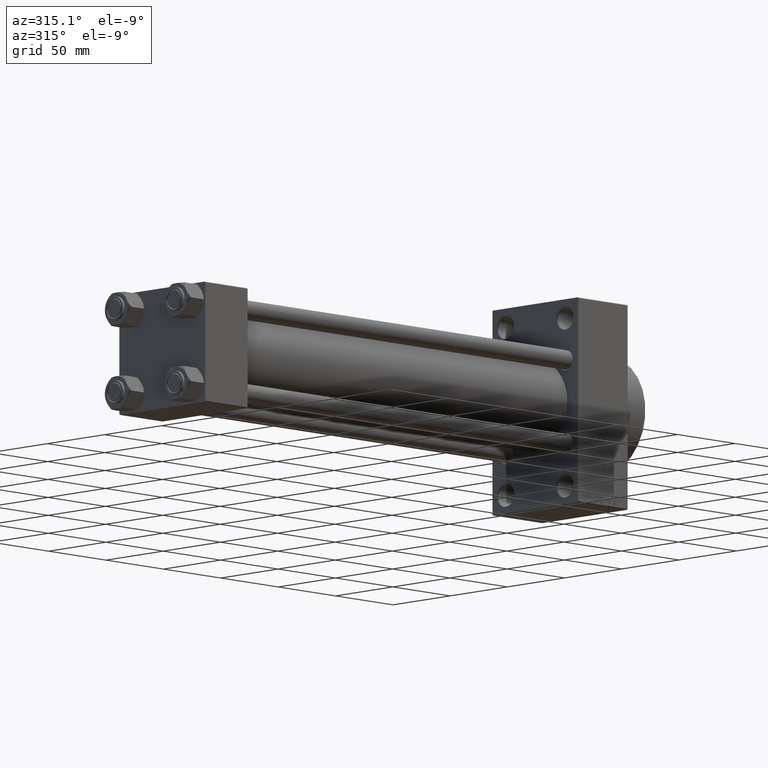
[diagram: clean part render]
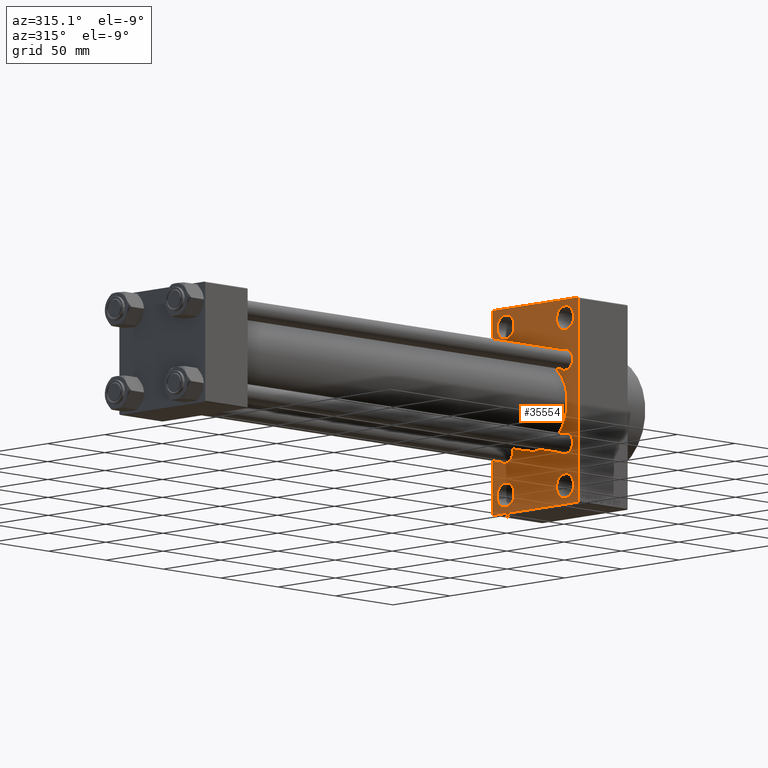
[diagram: same view with one face highlighted and labeled with its STEP entity id]
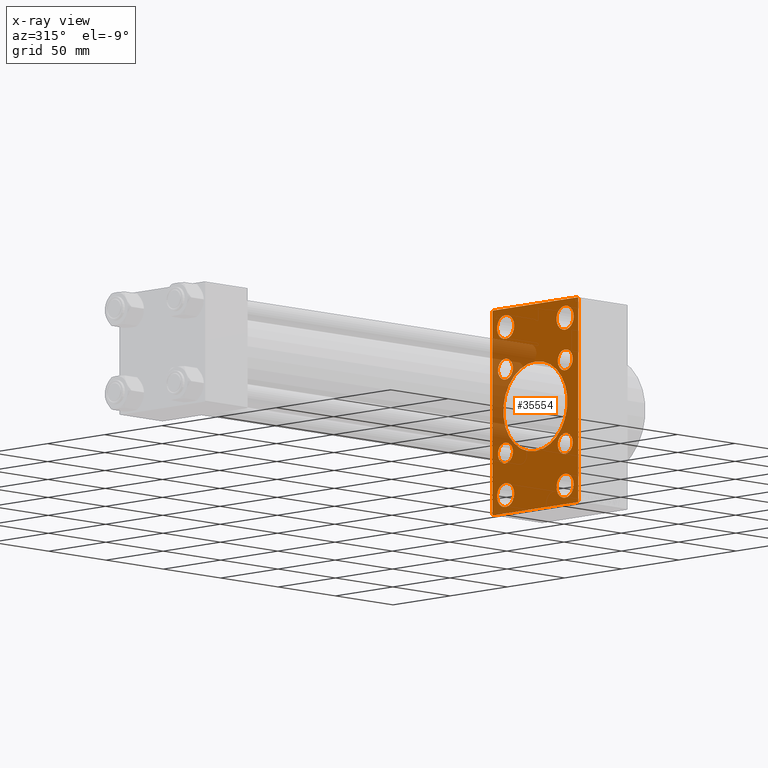
[diagram: x-ray of the same camera — body ghosted, the highlighted face saturated]
A machine part, auxiliary view. The second image highlights one B-rep face of the part: STEP entity #35554.
The next image is the same camera in x-ray: the body ghosted, the highlighted face saturated — about 18% of this face is hidden behind the body in this view.
In plain terms, the highlighted planar face has unit normal (-1, 0, 0).
Its self-contained STEP definition (entity closure, byte-faithful):
#137 = ORIENTED_EDGE ( 'NONE', *, *, #18716, .F. ) ;
#564 = ORIENTED_EDGE ( 'NONE', *, *, #25050, .T. ) ;
#808 = ORIENTED_EDGE ( 'NONE', *, *, #11490, .T. ) ;
#978 = VECTOR ( 'NONE', #2687, 1000.000000000000000 ) ;
#1043 = CARTESIAN_POINT ( 'NONE',  ( 324.9999999999999432, -25.99999999999999645, 52.50000000000000000 ) ) ;
#1358 = CIRCLE ( 'NONE', #29330, 6.500000000000008882 ) ;
#1393 = EDGE_CURVE ( 'NONE', #2626, #20647, #3151, .T. ) ;
#1401 = EDGE_CURVE ( 'NONE', #28456, #1434, #3121, .T. ) ;
#1416 = ORIENTED_EDGE ( 'NONE', *, *, #45336, .T. ) ;
#1434 = VERTEX_POINT ( 'NONE', #11450 ) ;
#1500 = ORIENTED_EDGE ( 'NONE', *, *, #1393, .T. ) ;
#1753 = CARTESIAN_POINT ( 'NONE',  ( 324.9999999999999432, -25.99999999999999645, -60.00000000000010658 ) ) ;
#2130 = CIRCLE ( 'NONE', #14902, 7.500000000000117240 ) ;
#2287 = EDGE_CURVE ( 'NONE', #35576, #29620, #16761, .T. ) ;
#2409 = CIRCLE ( 'NONE', #6407, 7.500000000000117240 ) ;
#2512 = VERTEX_POINT ( 'NONE', #13875 ) ;
#2545 = VECTOR ( 'NONE', #31335, 1000.000000000000114 ) ;
#2626 = VERTEX_POINT ( 'NONE', #14858 ) ;
#2687 = DIRECTION ( 'NONE',  ( 0.000000000000000000, -5.421010862427522170E-17, -1.000000000000000000 ) ) ;
#2862 = CARTESIAN_POINT ( 'NONE',  ( 324.9999999999999432, 37.50000000000000000, 63.49999999999998579 ) ) ;
#2905 = EDGE_CURVE ( 'NONE', #14826, #25409, #2409, .T. ) ;
#2936 = FACE_BOUND ( 'NONE', #39550, .T. ) ;
#2976 = CIRCLE ( 'NONE', #48550, 6.500000000000008882 ) ;
#3121 = CIRCLE ( 'NONE', #43921, 7.500000000000117240 ) ;
#3151 = CIRCLE ( 'NONE', #31157, 7.500000000000117240 ) ;
#3551 = DIRECTION ( 'NONE',  ( 0.000000000000000000, 0.000000000000000000, 1.000000000000000000 ) ) ;
#3557 = VERTEX_POINT ( 'NONE', #43160 ) ;
#3564 = DIRECTION ( 'NONE',  ( 0.000000000000000000, 0.000000000000000000, 1.000000000000000000 ) ) ;
#3660 = AXIS2_PLACEMENT_3D ( 'NONE', #13450, #28743, #16719 ) ;
#3699 = DIRECTION ( 'NONE',  ( 0.000000000000000000, 0.000000000000000000, 1.000000000000000000 ) ) ;
#3795 = DIRECTION ( 'NONE',  ( 0.000000000000000000, 0.000000000000000000, 1.000000000000000000 ) ) ;
#3937 = DIRECTION ( 'NONE',  ( 1.000000000000000000, -0.000000000000000000, 0.000000000000000000 ) ) ;
#4117 = CARTESIAN_POINT ( 'NONE',  ( 324.9999999999999432, 26.00000000000000000, 52.49999999999999289 ) ) ;
#4269 = DIRECTION ( 'NONE',  ( 0.000000000000000000, 0.000000000000000000, 1.000000000000000000 ) ) ;
#4273 = CARTESIAN_POINT ( 'NONE',  ( 324.9999999999999432, -25.99999999999999645, 44.99999999999987921 ) ) ;
#4310 = CARTESIAN_POINT ( 'NONE',  ( 324.9999999999999432, -37.49999999999999289, 63.49999999999991473 ) ) ;
#4725 = ORIENTED_EDGE ( 'NONE', *, *, #16850, .T. ) ;
#4730 = DIRECTION ( 'NONE',  ( 1.000000000000000000, -0.000000000000000000, 0.000000000000000000 ) ) ;
#5828 = VECTOR ( 'NONE', #21852, 1000.000000000000000 ) ;
#6407 = AXIS2_PLACEMENT_3D ( 'NONE', #1043, #22811, #3795 ) ;
#6470 = CIRCLE ( 'NONE', #20862, 6.500000000000008882 ) ;
#7082 = CARTESIAN_POINT ( 'NONE',  ( 324.9999999999999432, 37.50000000000000000, 63.99999999999998579 ) ) ;
#7425 = ORIENTED_EDGE ( 'NONE', *, *, #47923, .T. ) ;
#7581 = VERTEX_POINT ( 'NONE', #39198 ) ;
#7724 = DIRECTION ( 'NONE',  ( -0.000000000000000000, -0.7071067811865965336, -0.7071067811864985009 ) ) ;
#7786 = CARTESIAN_POINT ( 'NONE',  ( 324.9999999999999432, -50.49999999999740652, -50.50000000000441958 ) ) ;
#7936 = ORIENTED_EDGE ( 'NONE', *, *, #24443, .T. ) ;
#8031 = DIRECTION ( 'NONE',  ( 1.000000000000000000, 0.000000000000000000, 0.000000000000000000 ) ) ;
#8041 = CIRCLE ( 'NONE', #36057, 28.00000000000000000 ) ;
#8074 = CIRCLE ( 'NONE', #38475, 6.500000000000008882 ) ;
#8085 = CARTESIAN_POINT ( 'NONE',  ( 324.9999999999999432, 26.00000000000000000, -52.49999999999999289 ) ) ;
#8123 = DIRECTION ( 'NONE',  ( 0.000000000000000000, 0.000000000000000000, 1.000000000000000000 ) ) ;
#8312 = VERTEX_POINT ( 'NONE', #44611 ) ;
#8371 = DIRECTION ( 'NONE',  ( 1.000000000000000000, -0.000000000000000000, 0.000000000000000000 ) ) ;
#8865 = DIRECTION ( 'NONE',  ( 0.000000000000000000, 0.000000000000000000, -1.000000000000000000 ) ) ;
#9039 = VERTEX_POINT ( 'NONE', #18859 ) ;
#9045 = VECTOR ( 'NONE', #24071, 1000.000000000000000 ) ;
#9222 = CARTESIAN_POINT ( 'NONE',  ( 324.9999999999999432, -26.14999999999999147, -26.15000000000000924 ) ) ;
#9418 = VERTEX_POINT ( 'NONE', #39576 ) ;
#9734 = EDGE_CURVE ( 'NONE', #10638, #28502, #32494, .T. ) ;
#9950 = LINE ( 'NONE', #36515, #978 ) ;
#9976 = AXIS2_PLACEMENT_3D ( 'NONE', #15794, #31094, #3564 ) ;
#10231 = EDGE_CURVE ( 'NONE', #3557, #22715, #28932, .T. ) ;
#10242 = VERTEX_POINT ( 'NONE', #38842 ) ;
#10252 = DIRECTION ( 'NONE',  ( 0.000000000000000000, 0.000000000000000000, 1.000000000000000000 ) ) ;
#10285 = EDGE_CURVE ( 'NONE', #8312, #43495, #16029, .T. ) ;
#10436 = FACE_BOUND ( 'NONE', #35569, .T. ) ;
#10638 = VERTEX_POINT ( 'NONE', #35777 ) ;
#10807 = CARTESIAN_POINT ( 'NONE',  ( 324.9999999999999432, 26.14999999999999858, -26.15000000000000213 ) ) ;
#10886 = ORIENTED_EDGE ( 'NONE', *, *, #39221, .T. ) ;
#11423 = DIRECTION ( 'NONE',  ( -0.000000000000000000, 0.000000000000000000, 1.000000000000000000 ) ) ;
#11450 = CARTESIAN_POINT ( 'NONE',  ( 324.9999999999999432, 26.00000000000000000, 60.00000000000010658 ) ) ;
#11490 = EDGE_CURVE ( 'NONE', #28502, #19544, #9950, .T. ) ;
#11641 = CARTESIAN_POINT ( 'NONE',  ( 324.9999999999999432, 37.49999999999999289, -63.50000000000001421 ) ) ;
#11702 = CARTESIAN_POINT ( 'NONE',  ( 324.9999999999999432, -25.99999999999999645, 52.50000000000000000 ) ) ;
#11992 = AXIS2_PLACEMENT_3D ( 'NONE', #31820, #36745, #20268 ) ;
#12112 = VECTOR ( 'NONE', #13433, 1000.000000000000000 ) ;
#12180 = ORIENTED_EDGE ( 'NONE', *, *, #25796, .T. ) ;
#12309 = VERTEX_POINT ( 'NONE', #18073 ) ;
#12686 = CARTESIAN_POINT ( 'NONE',  ( 324.9999999999999432, -26.14999999999999147, -32.65000000000001990 ) ) ;
#13433 = DIRECTION ( 'NONE',  ( 0.000000000000000000, 0.7071067811865867636, -0.7071067811865081598 ) ) ;
#13450 = CARTESIAN_POINT ( 'NONE',  ( 324.9999999999999432, -26.14999999999999147, -26.15000000000000924 ) ) ;
#13875 = CARTESIAN_POINT ( 'NONE',  ( 324.9999999999999432, -25.99999999999999645, -44.99999999999987210 ) ) ;
#14331 = CARTESIAN_POINT ( 'NONE',  ( 324.9999999999999432, -50.49999999999969447, 50.50000000000039080 ) ) ;
#14619 = DIRECTION ( 'NONE',  ( 0.000000000000000000, 0.000000000000000000, 1.000000000000000000 ) ) ;
#14826 = VERTEX_POINT ( 'NONE', #4273 ) ;
#14858 = CARTESIAN_POINT ( 'NONE',  ( 324.9999999999999432, 26.00000000000000000, -60.00000000000010658 ) ) ;
#14902 = AXIS2_PLACEMENT_3D ( 'NONE', #8085, #18863, #49414 ) ;
#14935 = AXIS2_PLACEMENT_3D ( 'NONE', #33540, #44571, #10252 ) ;
#14956 = DIRECTION ( 'NONE',  ( 1.000000000000000000, -0.000000000000000000, 0.000000000000000000 ) ) ;
#15277 = DIRECTION ( 'NONE',  ( 1.000000000000000000, -0.000000000000000000, 0.000000000000000000 ) ) ;
#15560 = ORIENTED_EDGE ( 'NONE', *, *, #9734, .T. ) ;
#15794 = CARTESIAN_POINT ( 'NONE',  ( 324.9999999999999432, -26.14999999999999147, 26.15000000000000924 ) ) ;
#15875 = LINE ( 'NONE', #31924, #34823 ) ;
#16029 = LINE ( 'NONE', #7786, #2545 ) ;
#16498 = ORIENTED_EDGE ( 'NONE', *, *, #2905, .T. ) ;
#16516 = AXIS2_PLACEMENT_3D ( 'NONE', #11702, #25826, #31008 ) ;
#16559 = CIRCLE ( 'NONE', #3660, 6.500000000000008882 ) ;
#16719 = DIRECTION ( 'NONE',  ( 0.000000000000000000, 0.000000000000000000, 1.000000000000000000 ) ) ;
#16761 = CIRCLE ( 'NONE', #34377, 28.00000000000000000 ) ;
#16850 = EDGE_CURVE ( 'NONE', #7581, #12309, #32365, .T. ) ;
#17419 = VERTEX_POINT ( 'NONE', #17710 ) ;
#17710 = CARTESIAN_POINT ( 'NONE',  ( 324.9999999999999432, -36.99999999999992895, 63.99999999999997158 ) ) ;
#17946 = DIRECTION ( 'NONE',  ( -1.000000000000000000, 0.000000000000000000, -0.000000000000000000 ) ) ;
#18073 = CARTESIAN_POINT ( 'NONE',  ( 324.9999999999999432, -26.14999999999999147, 32.65000000000001990 ) ) ;
#18224 = AXIS2_PLACEMENT_3D ( 'NONE', #26807, #15277, #4269 ) ;
#18436 = FACE_BOUND ( 'NONE', #21909, .T. ) ;
#18716 = EDGE_CURVE ( 'NONE', #45199, #43495, #15875, .T. ) ;
#18859 = CARTESIAN_POINT ( 'NONE',  ( 324.9999999999999432, 26.14999999999999858, 32.65000000000001990 ) ) ;
#18863 = DIRECTION ( 'NONE',  ( 1.000000000000000000, -0.000000000000000000, 0.000000000000000000 ) ) ;
#19026 = EDGE_CURVE ( 'NONE', #10638, #17419, #33892, .T. ) ;
#19544 = VERTEX_POINT ( 'NONE', #11641 ) ;
#19906 = ORIENTED_EDGE ( 'NONE', *, *, #2287, .T. ) ;
#20268 = DIRECTION ( 'NONE',  ( 0.000000000000000000, 0.000000000000000000, 1.000000000000000000 ) ) ;
#20647 = VERTEX_POINT ( 'NONE', #46466 ) ;
#20862 = AXIS2_PLACEMENT_3D ( 'NONE', #9222, #4730, #31034 ) ;
#21338 = CIRCLE ( 'NONE', #14935, 7.500000000000117240 ) ;
#21852 = DIRECTION ( 'NONE',  ( -0.000000000000000000, 0.7071067811865524577, 0.7071067811865426878 ) ) ;
#21909 = EDGE_LOOP ( 'NONE', ( #34077, #41339 ) ) ;
#22194 = CARTESIAN_POINT ( 'NONE',  ( 324.9999999999999432, -2.602085213965210642E-15, 28.00000000000000000 ) ) ;
#22596 = LINE ( 'NONE', #14331, #5828 ) ;
#22715 = VERTEX_POINT ( 'NONE', #38325 ) ;
#22811 = DIRECTION ( 'NONE',  ( 1.000000000000000000, -0.000000000000000000, 0.000000000000000000 ) ) ;
#22819 = CARTESIAN_POINT ( 'NONE',  ( 324.9999999999999432, -25.99999999999999645, 60.00000000000011369 ) ) ;
#22829 = VECTOR ( 'NONE', #29627, 1000.000000000000000 ) ;
#22943 = ORIENTED_EDGE ( 'NONE', *, *, #36236, .T. ) ;
#23490 = CARTESIAN_POINT ( 'NONE',  ( 324.9999999999999432, -2.602085213965210642E-15, 0.000000000000000000 ) ) ;
#24071 = DIRECTION ( 'NONE',  ( 0.000000000000000000, -1.000000000000000000, -1.850371707708594563E-16 ) ) ;
#24443 = EDGE_CURVE ( 'NONE', #20647, #2626, #2130, .T. ) ;
#25050 = EDGE_CURVE ( 'NONE', #9418, #9039, #1358, .T. ) ;
#25409 = VERTEX_POINT ( 'NONE', #22819 ) ;
#25796 = EDGE_CURVE ( 'NONE', #46799, #10242, #16559, .T. ) ;
#25826 = DIRECTION ( 'NONE',  ( 1.000000000000000000, -0.000000000000000000, 0.000000000000000000 ) ) ;
#25897 = EDGE_LOOP ( 'NONE', ( #41625, #4725 ) ) ;
#25961 = FACE_BOUND ( 'NONE', #25897, .T. ) ;
#26077 = DIRECTION ( 'NONE',  ( 1.000000000000000000, -0.000000000000000000, 0.000000000000000000 ) ) ;
#26698 = PLANE ( 'NONE',  #36806 ) ;
#26807 = CARTESIAN_POINT ( 'NONE',  ( 324.9999999999999432, -25.99999999999999645, -52.49999999999999289 ) ) ;
#27127 = DIRECTION ( 'NONE',  ( 1.000000000000000000, -0.000000000000000000, 0.000000000000000000 ) ) ;
#27192 = CARTESIAN_POINT ( 'NONE',  ( 324.9999999999999432, 26.14999999999999858, -26.15000000000000213 ) ) ;
#27689 = ORIENTED_EDGE ( 'NONE', *, *, #37981, .T. ) ;
#28002 = EDGE_CURVE ( 'NONE', #25409, #14826, #38913, .T. ) ;
#28290 = ORIENTED_EDGE ( 'NONE', *, *, #31713, .T. ) ;
#28456 = VERTEX_POINT ( 'NONE', #49419 ) ;
#28502 = VERTEX_POINT ( 'NONE', #2862 ) ;
#28743 = DIRECTION ( 'NONE',  ( 1.000000000000000000, -0.000000000000000000, 0.000000000000000000 ) ) ;
#28826 = EDGE_CURVE ( 'NONE', #12309, #7581, #2976, .T. ) ;
#28932 = CIRCLE ( 'NONE', #45734, 6.500000000000008882 ) ;
#28964 = ORIENTED_EDGE ( 'NONE', *, *, #45076, .T. ) ;
#29198 = EDGE_CURVE ( 'NONE', #2512, #30919, #21338, .T. ) ;
#29330 = AXIS2_PLACEMENT_3D ( 'NONE', #34416, #27127, #14619 ) ;
#29444 = ORIENTED_EDGE ( 'NONE', *, *, #19026, .F. ) ;
#29620 = VERTEX_POINT ( 'NONE', #31348 ) ;
#29627 = DIRECTION ( 'NONE',  ( 0.000000000000000000, -1.000000000000000000, -1.850371707708594563E-16 ) ) ;
#29786 = CARTESIAN_POINT ( 'NONE',  ( 324.9999999999999432, 50.49999999999739941, -50.50000000000441247 ) ) ;
#29923 = EDGE_LOOP ( 'NONE', ( #1416, #37561, #137, #28964, #29444, #15560, #808, #10886 ) ) ;
#29976 = FACE_OUTER_BOUND ( 'NONE', #29923, .T. ) ;
#30337 = DIRECTION ( 'NONE',  ( 0.000000000000000000, 0.000000000000000000, 1.000000000000000000 ) ) ;
#30474 = DIRECTION ( 'NONE',  ( 1.000000000000000000, -0.000000000000000000, 0.000000000000000000 ) ) ;
#30919 = VERTEX_POINT ( 'NONE', #1753 ) ;
#31008 = DIRECTION ( 'NONE',  ( 0.000000000000000000, 0.000000000000000000, 1.000000000000000000 ) ) ;
#31034 = DIRECTION ( 'NONE',  ( 0.000000000000000000, 0.000000000000000000, 1.000000000000000000 ) ) ;
#31094 = DIRECTION ( 'NONE',  ( 1.000000000000000000, -0.000000000000000000, 0.000000000000000000 ) ) ;
#31157 = AXIS2_PLACEMENT_3D ( 'NONE', #45280, #3937, #3699 ) ;
#31222 = CIRCLE ( 'NONE', #11992, 6.500000000000008882 ) ;
#31335 = DIRECTION ( 'NONE',  ( 0.000000000000000000, -0.7071067811865965336, 0.7071067811864985009 ) ) ;
#31348 = CARTESIAN_POINT ( 'NONE',  ( 324.9999999999999432, 8.269258236473784371E-16, -28.00000000000000000 ) ) ;
#31713 = EDGE_CURVE ( 'NONE', #30919, #2512, #47840, .T. ) ;
#31820 = CARTESIAN_POINT ( 'NONE',  ( 324.9999999999999432, 26.14999999999999858, 26.15000000000000213 ) ) ;
#31924 = CARTESIAN_POINT ( 'NONE',  ( 324.9999999999999432, -37.49999999999999289, 63.99999999999997158 ) ) ;
#32365 = CIRCLE ( 'NONE', #9976, 6.500000000000008882 ) ;
#32494 = LINE ( 'NONE', #47764, #12112 ) ;
#33540 = CARTESIAN_POINT ( 'NONE',  ( 324.9999999999999432, -25.99999999999999645, -52.49999999999999289 ) ) ;
#33730 = FACE_BOUND ( 'NONE', #46864, .T. ) ;
#33892 = LINE ( 'NONE', #7082, #22829 ) ;
#33987 = CARTESIAN_POINT ( 'NONE',  ( 324.9999999999999432, 0.000000000000000000, 0.000000000000000000 ) ) ;
#34077 = ORIENTED_EDGE ( 'NONE', *, *, #38602, .T. ) ;
#34234 = FACE_BOUND ( 'NONE', #41830, .T. ) ;
#34377 = AXIS2_PLACEMENT_3D ( 'NONE', #23490, #46051, #39284 ) ;
#34416 = CARTESIAN_POINT ( 'NONE',  ( 324.9999999999999432, 26.14999999999999858, 26.15000000000000213 ) ) ;
#34789 = VERTEX_POINT ( 'NONE', #46724 ) ;
#34823 = VECTOR ( 'NONE', #8865, 1000.000000000000000 ) ;
#35318 = EDGE_LOOP ( 'NONE', ( #40944, #28290 ) ) ;
#35554 = ADVANCED_FACE ( 'NONE', ( #10436, #45749, #2936, #45004, #25961, #34234, #18436, #37992, #33730, #29976 ), #26698, .T. ) ;
#35569 = EDGE_LOOP ( 'NONE', ( #44533, #16498 ) ) ;
#35576 = VERTEX_POINT ( 'NONE', #22194 ) ;
#35720 = ORIENTED_EDGE ( 'NONE', *, *, #41185, .T. ) ;
#35777 = CARTESIAN_POINT ( 'NONE',  ( 324.9999999999999432, 36.99999999999994316, 63.99999999999998579 ) ) ;
#35865 = CARTESIAN_POINT ( 'NONE',  ( 324.9999999999999432, 37.49999999999999289, -64.00000000000000000 ) ) ;
#36057 = AXIS2_PLACEMENT_3D ( 'NONE', #46109, #8031, #42843 ) ;
#36236 = EDGE_CURVE ( 'NONE', #9039, #9418, #31222, .T. ) ;
#36515 = CARTESIAN_POINT ( 'NONE',  ( 324.9999999999999432, 37.50000000000000000, 63.99999999999998579 ) ) ;
#36745 = DIRECTION ( 'NONE',  ( 1.000000000000000000, -0.000000000000000000, 0.000000000000000000 ) ) ;
#36806 = AXIS2_PLACEMENT_3D ( 'NONE', #33987, #17946, #11423 ) ;
#37561 = ORIENTED_EDGE ( 'NONE', *, *, #10285, .T. ) ;
#37613 = CARTESIAN_POINT ( 'NONE',  ( 324.9999999999999432, -26.14999999999999147, 26.15000000000000924 ) ) ;
#37619 = VECTOR ( 'NONE', #7724, 1000.000000000000114 ) ;
#37981 = EDGE_CURVE ( 'NONE', #29620, #35576, #8041, .T. ) ;
#37992 = FACE_BOUND ( 'NONE', #42157, .T. ) ;
#38325 = CARTESIAN_POINT ( 'NONE',  ( 324.9999999999999432, 26.14999999999999858, -19.64999999999999503 ) ) ;
#38475 = AXIS2_PLACEMENT_3D ( 'NONE', #27192, #30474, #38733 ) ;
#38602 = EDGE_CURVE ( 'NONE', #22715, #3557, #8074, .T. ) ;
#38733 = DIRECTION ( 'NONE',  ( 0.000000000000000000, 0.000000000000000000, 1.000000000000000000 ) ) ;
#38842 = CARTESIAN_POINT ( 'NONE',  ( 324.9999999999999432, -26.14999999999999147, -19.65000000000000213 ) ) ;
#38913 = CIRCLE ( 'NONE', #16516, 7.500000000000117240 ) ;
#39198 = CARTESIAN_POINT ( 'NONE',  ( 324.9999999999999432, -26.14999999999999147, 19.65000000000000213 ) ) ;
#39221 = EDGE_CURVE ( 'NONE', #19544, #34789, #48563, .T. ) ;
#39284 = DIRECTION ( 'NONE',  ( 0.000000000000000000, 0.000000000000000000, -1.000000000000000000 ) ) ;
#39510 = CIRCLE ( 'NONE', #48323, 7.500000000000117240 ) ;
#39550 = EDGE_LOOP ( 'NONE', ( #7936, #1500 ) ) ;
#39576 = CARTESIAN_POINT ( 'NONE',  ( 324.9999999999999432, 26.14999999999999858, 19.64999999999999147 ) ) ;
#40944 = ORIENTED_EDGE ( 'NONE', *, *, #29198, .T. ) ;
#41185 = EDGE_CURVE ( 'NONE', #10242, #46799, #6470, .T. ) ;
#41339 = ORIENTED_EDGE ( 'NONE', *, *, #10231, .T. ) ;
#41625 = ORIENTED_EDGE ( 'NONE', *, *, #28826, .T. ) ;
#41830 = EDGE_LOOP ( 'NONE', ( #22943, #564 ) ) ;
#42157 = EDGE_LOOP ( 'NONE', ( #35720, #12180 ) ) ;
#42843 = DIRECTION ( 'NONE',  ( 0.000000000000000000, 0.000000000000000000, -1.000000000000000000 ) ) ;
#43114 = LINE ( 'NONE', #35865, #9045 ) ;
#43160 = CARTESIAN_POINT ( 'NONE',  ( 324.9999999999999432, 26.14999999999999858, -32.65000000000001279 ) ) ;
#43495 = VERTEX_POINT ( 'NONE', #45830 ) ;
#43921 = AXIS2_PLACEMENT_3D ( 'NONE', #45778, #14956, #48775 ) ;
#44257 = ORIENTED_EDGE ( 'NONE', *, *, #1401, .T. ) ;
#44533 = ORIENTED_EDGE ( 'NONE', *, *, #28002, .T. ) ;
#44571 = DIRECTION ( 'NONE',  ( 1.000000000000000000, -0.000000000000000000, 0.000000000000000000 ) ) ;
#44611 = CARTESIAN_POINT ( 'NONE',  ( 324.9999999999999432, -36.99999999999993605, -64.00000000000001421 ) ) ;
#45004 = FACE_BOUND ( 'NONE', #45925, .T. ) ;
#45076 = EDGE_CURVE ( 'NONE', #45199, #17419, #22596, .T. ) ;
#45199 = VERTEX_POINT ( 'NONE', #4310 ) ;
#45280 = CARTESIAN_POINT ( 'NONE',  ( 324.9999999999999432, 26.00000000000000000, -52.49999999999999289 ) ) ;
#45336 = EDGE_CURVE ( 'NONE', #34789, #8312, #43114, .T. ) ;
#45734 = AXIS2_PLACEMENT_3D ( 'NONE', #10807, #48623, #3551 ) ;
#45749 = FACE_BOUND ( 'NONE', #35318, .T. ) ;
#45778 = CARTESIAN_POINT ( 'NONE',  ( 324.9999999999999432, 26.00000000000000000, 52.49999999999999289 ) ) ;
#45830 = CARTESIAN_POINT ( 'NONE',  ( 324.9999999999999432, -37.49999999999999289, -63.50000000000002842 ) ) ;
#45925 = EDGE_LOOP ( 'NONE', ( #7425, #44257 ) ) ;
#46051 = DIRECTION ( 'NONE',  ( 1.000000000000000000, 0.000000000000000000, 0.000000000000000000 ) ) ;
#46109 = CARTESIAN_POINT ( 'NONE',  ( 324.9999999999999432, -2.602085213965210642E-15, 0.000000000000000000 ) ) ;
#46466 = CARTESIAN_POINT ( 'NONE',  ( 324.9999999999999432, 26.00000000000000000, -44.99999999999987210 ) ) ;
#46724 = CARTESIAN_POINT ( 'NONE',  ( 324.9999999999999432, 36.99999999999993605, -64.00000000000000000 ) ) ;
#46799 = VERTEX_POINT ( 'NONE', #12686 ) ;
#46864 = EDGE_LOOP ( 'NONE', ( #19906, #27689 ) ) ;
#47764 = CARTESIAN_POINT ( 'NONE',  ( 324.9999999999999432, 50.49999999999791100, 50.50000000000351719 ) ) ;
#47840 = CIRCLE ( 'NONE', #18224, 7.500000000000117240 ) ;
#47923 = EDGE_CURVE ( 'NONE', #1434, #28456, #39510, .T. ) ;
#48323 = AXIS2_PLACEMENT_3D ( 'NONE', #4117, #8371, #8123 ) ;
#48550 = AXIS2_PLACEMENT_3D ( 'NONE', #37613, #26077, #30337 ) ;
#48563 = LINE ( 'NONE', #29786, #37619 ) ;
#48623 = DIRECTION ( 'NONE',  ( 1.000000000000000000, -0.000000000000000000, 0.000000000000000000 ) ) ;
#48775 = DIRECTION ( 'NONE',  ( 0.000000000000000000, 0.000000000000000000, 1.000000000000000000 ) ) ;
#49414 = DIRECTION ( 'NONE',  ( 0.000000000000000000, 0.000000000000000000, 1.000000000000000000 ) ) ;
#49419 = CARTESIAN_POINT ( 'NONE',  ( 324.9999999999999432, 26.00000000000000000, 44.99999999999987210 ) ) ;